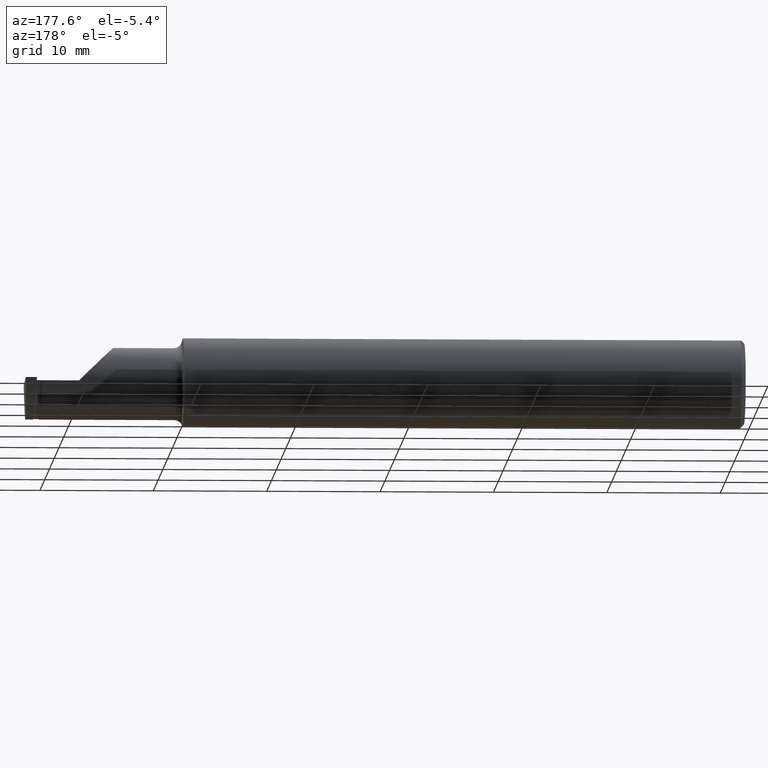
[diagram: clean part render]
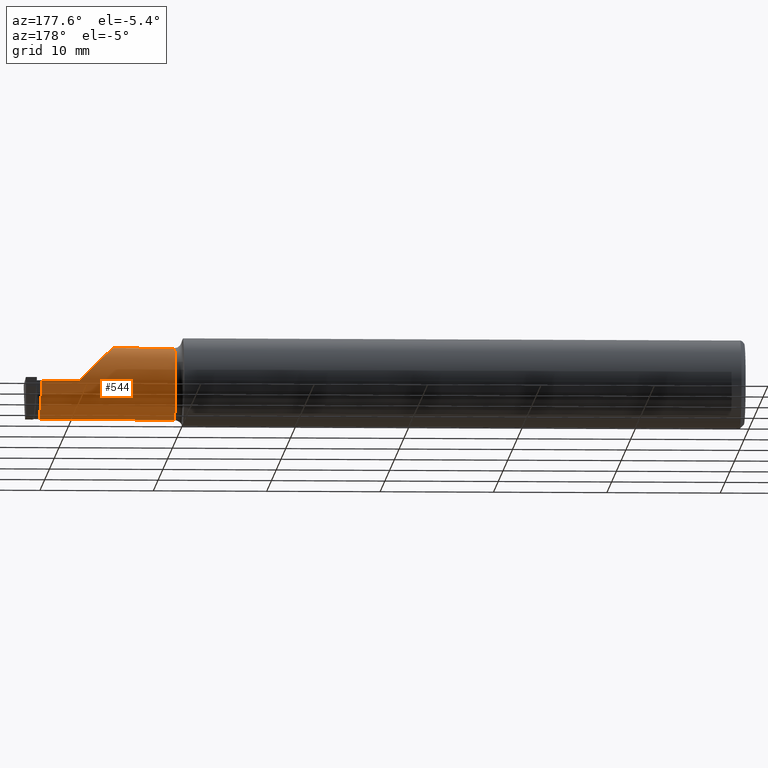
[diagram: same view with one face highlighted and labeled with its STEP entity id]
A machine part, auxiliary view. The second image highlights one B-rep face of the part: STEP entity #544.
In plain terms, the highlighted cylindrical surface (edge-blend (fillet) strip) has radius 3.175 mm, axis along (-1, -0, -0).
Its self-contained STEP definition (entity closure, byte-faithful):
#9 = CYLINDRICAL_SURFACE ( 'NONE', #907, 0.1250000000000000000 ) ;
#17 = CARTESIAN_POINT ( 'NONE',  ( 2.444428611900506976, -0.08909999999992185282, -0.1250000000000000555 ) ) ;
#46 = CARTESIAN_POINT ( 'NONE',  ( 2.310000000000000053, 0.03589999999999998748, 2.326828918379970872E-17 ) ) ;
#64 = CARTESIAN_POINT ( 'NONE',  ( 2.185000000000000941, -0.01587669529663685714, 0.1250000000000000278 ) ) ;
#71 = CARTESIAN_POINT ( 'NONE',  ( 2.443913530967688708, -0.03369782618951661091, -0.1123476429042731123 ) ) ;
#87 = CARTESIAN_POINT ( 'NONE',  ( 2.444147791115841795, -0.04875164862914172642, -0.1185892249351804817 ) ) ;
#90 = FACE_OUTER_BOUND ( 'NONE', #102, .T. ) ;
#99 = DIRECTION ( 'NONE',  ( -1.000000000000000000, -0.000000000000000000, -0.000000000000000000 ) ) ;
#102 = EDGE_LOOP ( 'NONE', ( #1081, #376, #303, #1092, #849, #358 ) ) ;
#128 = CARTESIAN_POINT ( 'NONE',  ( 2.440747162570274131, 0.03189735508455680824, -0.03242710871413986146 ) ) ;
#166 = CARTESIAN_POINT ( 'NONE',  ( 2.441698186134095394, 0.02323143009701810965, -0.05543537883483174583 ) ) ;
#170 = VERTEX_POINT ( 'NONE', #46 ) ;
#191 = DIRECTION ( 'NONE',  ( -1.000000000000000000, -0.000000000000000000, -0.000000000000000000 ) ) ;
#207 = EDGE_CURVE ( 'NONE', #1062, #170, #395, .T. ) ;
#210 = CARTESIAN_POINT ( 'NONE',  ( 2.440122559936418689, 0.03509086040010602620, -0.01638619876903570083 ) ) ;
#240 = CARTESIAN_POINT ( 'NONE',  ( 2.444257766626077633, -0.05670268150663042295, -0.1210058768752618474 ) ) ;
#241 = DIRECTION ( 'NONE',  ( 1.000000000000000000, 0.000000000000000000, 0.000000000000000000 ) ) ;
#250 = CARTESIAN_POINT ( 'NONE',  ( 1.949999999999999956, -0.08909999999999995701, -0.1250000000000000000 ) ) ;
#254 = LINE ( 'NONE', #845, #775 ) ;
#258 = VERTEX_POINT ( 'NONE', #874 ) ;
#272 = EDGE_CURVE ( 'NONE', #605, #642, #438, .T. ) ;
#296 = CARTESIAN_POINT ( 'NONE',  ( 1.974999999999999867, -0.08909999999999998477, 0.000000000000000000 ) ) ;
#303 = ORIENTED_EDGE ( 'NONE', *, *, #728, .F. ) ;
#319 = CARTESIAN_POINT ( 'NONE',  ( 2.439500000000000668, 0.03590000000000006380, 7.121324356843854204E-18 ) ) ;
#350 = DIRECTION ( 'NONE',  ( -1.000000000000000000, -0.000000000000000000, -0.000000000000000000 ) ) ;
#358 = ORIENTED_EDGE ( 'NONE', *, *, #936, .T. ) ;
#359 = VECTOR ( 'NONE', #350, 39.37007874015748143 ) ;
#370 = VECTOR ( 'NONE', #241, 39.37007874015748143 ) ;
#376 = ORIENTED_EDGE ( 'NONE', *, *, #558, .T. ) ;
#385 = CARTESIAN_POINT ( 'NONE',  ( 2.441076701117118386, 0.02947894755971935607, -0.04037901199672798425 ) ) ;
#395 =( BOUNDED_CURVE ( )  B_SPLINE_CURVE ( 3, ( #810, #64, #741, #727 ),
 .UNSPECIFIED., .F., .F. ) 
 B_SPLINE_CURVE_WITH_KNOTS ( ( 4, 4 ),
 ( 0.000000000000000000, 1.570796326794896558 ),
 .UNSPECIFIED. ) 
 CURVE ( )  GEOMETRIC_REPRESENTATION_ITEM ( )  RATIONAL_B_SPLINE_CURVE ( ( 1.000000000000000000, 0.8047378541243649375, 0.8047378541243649375, 1.000000000000000000 ) ) 
 REPRESENTATION_ITEM ( '' )  );
#438 = B_SPLINE_CURVE_WITH_KNOTS ( 'NONE', 3,
 ( #319, #659, #210, #128, #385, #166, #611, #530, #864, #747, #505, #840, #71, #87, #240, #582, #913, #829 ),
 .UNSPECIFIED., .F., .F.,
 ( 4, 2, 2, 2, 2, 2, 2, 2, 4 ),
 ( 0.000000000000000000, 0.0006227411658704137647, 0.001245482331740827529, 0.001868223497611241077, 0.002490964663481655059, 0.003113705829352067956, 0.003736446995222479986, 0.004359188161092893317, 0.004981929326963306648 ),
 .UNSPECIFIED. ) ;
#450 = CIRCLE ( 'NONE', #734, 0.1250000000000000000 ) ;
#476 = VERTEX_POINT ( 'NONE', #768 ) ;
#505 = CARTESIAN_POINT ( 'NONE',  ( 2.443432735936789779, -0.01281923194865897467, -0.09936793618819571294 ) ) ;
#524 = DIRECTION ( 'NONE',  ( 0.000000000000000000, 0.000000000000000000, 1.000000000000000000 ) ) ;
#530 = CARTESIAN_POINT ( 'NONE',  ( 2.442475355473209042, 0.01027685637267981150, -0.07626677138630481856 ) ) ;
#544 = ADVANCED_FACE ( 'NONE', ( #90 ), #9, .T. ) ;
#558 = EDGE_CURVE ( 'NONE', #642, #258, #946, .T. ) ;
#582 = CARTESIAN_POINT ( 'NONE',  ( 2.444412895850132994, -0.07276030822906991158, -0.1241975159040745735 ) ) ;
#605 = VERTEX_POINT ( 'NONE', #756 ) ;
#609 = CARTESIAN_POINT ( 'NONE',  ( 1.949999999999999956, -0.08909999999999998477, 0.000000000000000000 ) ) ;
#611 = CARTESIAN_POINT ( 'NONE',  ( 2.441973878009436216, 0.01939704949769464198, -0.06261605425529394309 ) ) ;
#638 = DIRECTION ( 'NONE',  ( 0.000000000000000000, 0.000000000000000000, 1.000000000000000000 ) ) ;
#642 = VERTEX_POINT ( 'NONE', #17 ) ;
#654 = CARTESIAN_POINT ( 'NONE',  ( 1.949999999999999956, 0.03590000000000001523, 6.735557395310447447E-17 ) ) ;
#659 = CARTESIAN_POINT ( 'NONE',  ( 2.439820316791854182, 0.03589999999677379733, -0.008251322795549667979 ) ) ;
#727 = CARTESIAN_POINT ( 'NONE',  ( 2.310000000000000053, 0.03589999999999998748, 2.326828918379970872E-17 ) ) ;
#728 = EDGE_CURVE ( 'NONE', #476, #258, #450, .T. ) ;
#734 = AXIS2_PLACEMENT_3D ( 'NONE', #296, #191, #638 ) ;
#738 = LINE ( 'NONE', #654, #370 ) ;
#741 = CARTESIAN_POINT ( 'NONE',  ( 2.236776695296637474, 0.03590000000000000829, 0.07322330470336313457 ) ) ;
#747 = CARTESIAN_POINT ( 'NONE',  ( 2.443195877277316796, -0.006474744135555979795, -0.09415031118328168191 ) ) ;
#756 = CARTESIAN_POINT ( 'NONE',  ( 2.439500000000000668, 0.03590000000000006380, 7.121324356843854204E-18 ) ) ;
#768 = CARTESIAN_POINT ( 'NONE',  ( 1.974999999999999867, -0.08909999999999998477, 0.1250000000000000000 ) ) ;
#775 = VECTOR ( 'NONE', #930, 39.37007874015748143 ) ;
#810 = CARTESIAN_POINT ( 'NONE',  ( 2.185000000000000941, -0.08909999999999998477, 0.1250000000000000000 ) ) ;
#829 = CARTESIAN_POINT ( 'NONE',  ( 2.444428611900506976, -0.08909999999992185282, -0.1250000000000000555 ) ) ;
#840 = CARTESIAN_POINT ( 'NONE',  ( 2.443786525276902655, -0.02650699970421378088, -0.1085120206740964044 ) ) ;
#845 = CARTESIAN_POINT ( 'NONE',  ( 1.949999999999999956, -0.08909999999999998477, 0.1250000000000000000 ) ) ;
#849 = ORIENTED_EDGE ( 'NONE', *, *, #207, .T. ) ;
#864 = CARTESIAN_POINT ( 'NONE',  ( 2.442717838188013690, 0.005034119961512959623, -0.08264370188734956879 ) ) ;
#874 = CARTESIAN_POINT ( 'NONE',  ( 1.974999999999999867, -0.08909999999999995701, -0.1250000000000000000 ) ) ;
#907 = AXIS2_PLACEMENT_3D ( 'NONE', #609, #99, #524 ) ;
#913 = CARTESIAN_POINT ( 'NONE',  ( 2.444436834922086632, -0.08088281945162062447, -0.1249999999999949207 ) ) ;
#930 = DIRECTION ( 'NONE',  ( -1.000000000000000000, -0.000000000000000000, -0.000000000000000000 ) ) ;
#936 = EDGE_CURVE ( 'NONE', #170, #605, #738, .T. ) ;
#946 = LINE ( 'NONE', #250, #359 ) ;
#986 = EDGE_CURVE ( 'NONE', #1062, #476, #254, .T. ) ;
#995 = CARTESIAN_POINT ( 'NONE',  ( 2.185000000000000941, -0.08909999999999998477, 0.1250000000000000000 ) ) ;
#1062 = VERTEX_POINT ( 'NONE', #995 ) ;
#1081 = ORIENTED_EDGE ( 'NONE', *, *, #272, .T. ) ;
#1092 = ORIENTED_EDGE ( 'NONE', *, *, #986, .F. ) ;